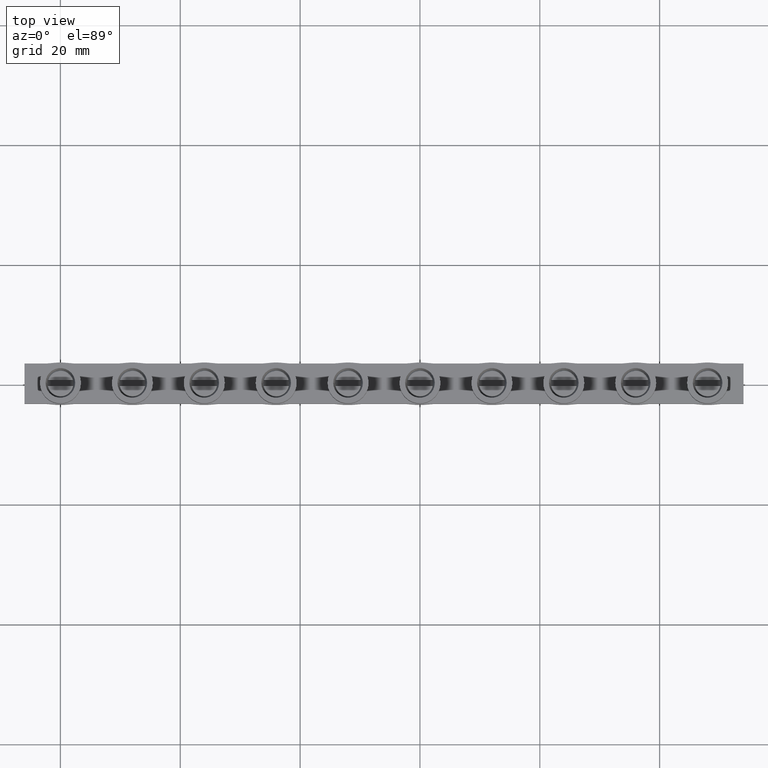
[diagram: clean part render]
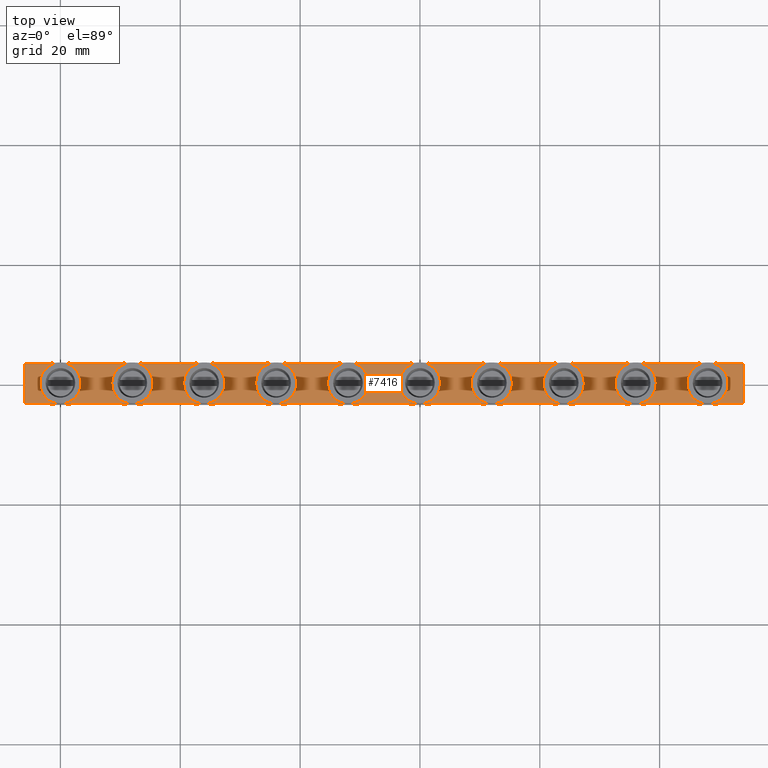
[diagram: same view with one face highlighted and labeled with its STEP entity id]
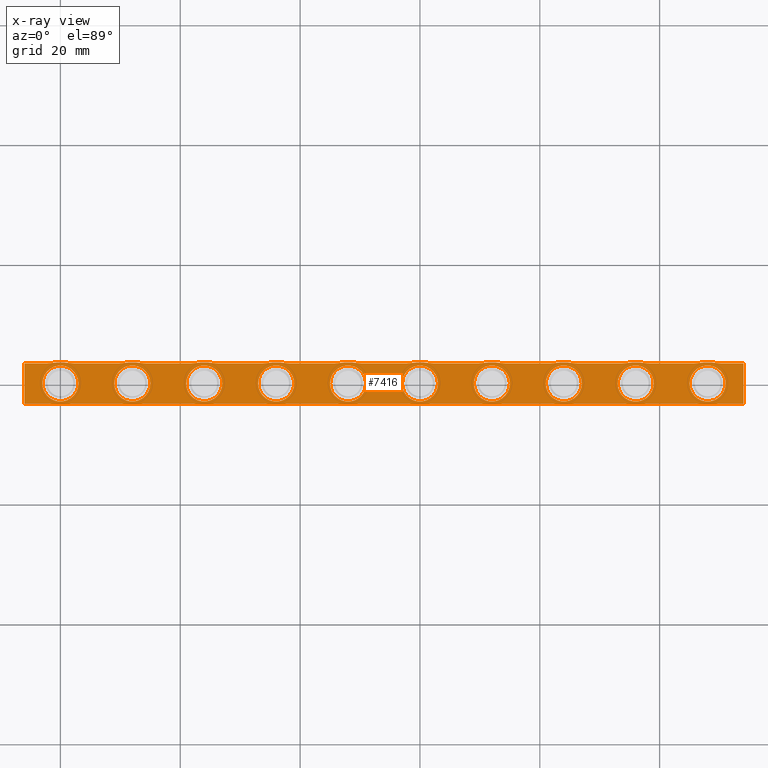
[diagram: x-ray of the same camera — body ghosted, the highlighted face saturated]
A machine part, top view. The second image highlights one B-rep face of the part: STEP entity #7416.
The next image is the same camera in x-ray: the body ghosted, the highlighted face saturated — about 0% of this face is hidden behind the body in this view.
In plain terms, the highlighted planar face has unit normal (0, 0, -1).
Its self-contained STEP definition (entity closure, byte-faithful):
#817 = DIRECTION ( 'NONE',  ( 0.0000000000000000000, 0.0000000000000000000, 1.000000000000000000 ) ) ;
#818 = DIRECTION ( 'NONE',  ( -1.000000000000000000, 0.0000000000000000000, 0.0000000000000000000 ) ) ;
#826 = CARTESIAN_POINT ( 'NONE',  ( 24.00000000000000000, 2.853742281606033700E-015, -0.9000000000000014700 ) ) ;
#1513 = CARTESIAN_POINT ( 'NONE',  ( 87.00000000000001400, 1.016003022525466700E-014, -0.9000000000000014700 ) ) ;
#1515 = CARTESIAN_POINT ( 'NONE',  ( 99.00000000000000000, 1.154780900603555300E-014, -0.9000000000000014700 ) ) ;
#1522 = CARTESIAN_POINT ( 'NONE',  ( 93.00000000000000000, 1.118041496629134800E-014, -0.9000000000000014700 ) ) ;
#1530 = CARTESIAN_POINT ( 'NONE',  ( 105.0000000000000000, 1.256819374707223200E-014, -0.9000000000000014700 ) ) ;
#1537 = CARTESIAN_POINT ( 'NONE',  ( 81.00000000000000000, 9.792636185510462000E-015, -0.9000000000000014700 ) ) ;
#1541 = CARTESIAN_POINT ( 'NONE',  ( 111.0000000000000000, 1.293558778681643700E-014, -0.9000000000000014700 ) ) ;
#1542 = CARTESIAN_POINT ( 'NONE',  ( 57.74999999999838000, -3.349999999999909900, -0.9000000000000014700 ) ) ;
#1556 = CARTESIAN_POINT ( 'NONE',  ( -2.999999999999999100, 0.0000000000000000000, -0.9000000000000014700 ) ) ;
#1567 = CARTESIAN_POINT ( 'NONE',  ( 45.75000000000147100, 3.350000000000075600, -0.9000000000000014700 ) ) ;
#1571 = CARTESIAN_POINT ( 'NONE',  ( 2.999999999999999100, 3.673940397442058900E-016, -0.9000000000000014700 ) ) ;
#1594 = CARTESIAN_POINT ( 'NONE',  ( 86.25000000000154900, -3.349999999999919700, -0.9000000000000014700 ) ) ;
#1596 = CARTESIAN_POINT ( 'NONE',  ( 9.750000000001465500, 3.350000000000071100, -0.9000000000000014700 ) ) ;
#1597 = CARTESIAN_POINT ( 'NONE',  ( -2.249999999998534500, 3.350000000000069800, -0.9000000000000014700 ) ) ;
#1598 = CARTESIAN_POINT ( 'NONE',  ( 93.75000000000147800, 3.350000000000080900, -0.9000000000000014700 ) ) ;
#1600 = CARTESIAN_POINT ( 'NONE',  ( 81.74999999999838000, -3.349999999999907300, -0.9000000000000014700 ) ) ;
#1604 = CARTESIAN_POINT ( 'NONE',  ( 9.749999999998376400, -3.349999999999915700, -0.9000000000000014700 ) ) ;
#1608 = CARTESIAN_POINT ( 'NONE',  ( 14.24999999999843900, 3.350000000000086700, -0.9000000000000014700 ) ) ;
#1609 = CARTESIAN_POINT ( 'NONE',  ( 45.74999999999838000, -3.349999999999911300, -0.9000000000000014700 ) ) ;
#1612 = CARTESIAN_POINT ( 'NONE',  ( 21.74999999999837600, -3.349999999999914400, -0.9000000000000014700 ) ) ;
#1618 = CARTESIAN_POINT ( 'NONE',  ( 113.9999999999992200, 3.350000000000098700, -0.9000000000000014700 ) ) ;
#1620 = CARTESIAN_POINT ( 'NONE',  ( 74.24999999999843700, 3.350000000000093800, -0.9000000000000014700 ) ) ;
#1621 = CARTESIAN_POINT ( 'NONE',  ( -5.999999999999998200, 3.350000000000084500, -0.9000000000000014700 ) ) ;
#1622 = CARTESIAN_POINT ( 'NONE',  ( 62.25000000000154200, -3.349999999999922400, -0.9000000000000014700 ) ) ;
#1623 = CARTESIAN_POINT ( 'NONE',  ( 105.7500000000014600, 3.350000000000082700, -0.9000000000000014700 ) ) ;
#1624 = CARTESIAN_POINT ( 'NONE',  ( 98.25000000000154900, -3.349999999999918400, -0.9000000000000014700 ) ) ;
#1627 = CARTESIAN_POINT ( 'NONE',  ( 9.000000000000001800, 1.465963500825148300E-015, -0.9000000000000014700 ) ) ;
#1629 = CARTESIAN_POINT ( 'NONE',  ( 2.250000000001540500, -3.349999999999929500, -0.9000000000000014700 ) ) ;
#1632 = CARTESIAN_POINT ( 'NONE',  ( 38.25000000000154200, -3.349999999999925500, -0.9000000000000014700 ) ) ;
#1633 = CARTESIAN_POINT ( 'NONE',  ( 26.25000000000154200, -3.349999999999926800, -0.9000000000000014700 ) ) ;
#1635 = CARTESIAN_POINT ( 'NONE',  ( 50.24999999999844400, 3.350000000000091100, -0.9000000000000014700 ) ) ;
#1636 = CARTESIAN_POINT ( 'NONE',  ( 81.75000000000147800, 3.350000000000079600, -0.9000000000000014700 ) ) ;
#1641 = CARTESIAN_POINT ( 'NONE',  ( 69.74999999999836600, -3.349999999999908600, -0.9000000000000014700 ) ) ;
#1642 = CARTESIAN_POINT ( 'NONE',  ( 15.00000000000000000, 1.833357540569354400E-015, -0.9000000000000014700 ) ) ;
#1645 = CARTESIAN_POINT ( 'NONE',  ( 33.74999999999838000, -3.349999999999913000, -0.9000000000000014700 ) ) ;
#1647 = CARTESIAN_POINT ( 'NONE',  ( 38.24999999999843700, 3.350000000000089400, -0.9000000000000014700 ) ) ;
#1649 = CARTESIAN_POINT ( 'NONE',  ( 14.25000000000154000, -3.349999999999928100, -0.9000000000000014700 ) ) ;
#1650 = CARTESIAN_POINT ( 'NONE',  ( 69.75000000000146400, 3.350000000000078200, -0.9000000000000014700 ) ) ;
#1651 = CARTESIAN_POINT ( 'NONE',  ( -2.250000000001624000, -3.349999999999917000, -0.9000000000000014700 ) ) ;
#1655 = CARTESIAN_POINT ( 'NONE',  ( 2.249999999998439500, 3.350000000000085400, -0.9000000000000014700 ) ) ;
#1656 = CARTESIAN_POINT ( 'NONE',  ( 33.75000000000146400, 3.350000000000073800, -0.9000000000000014700 ) ) ;
#1665 = CARTESIAN_POINT ( 'NONE',  ( 62.24999999999843700, 3.350000000000092500, -0.9000000000000014700 ) ) ;
#1668 = CARTESIAN_POINT ( 'NONE',  ( -5.999999999999994700, -3.349999999999916600, -0.9000000000000014700 ) ) ;
#1670 = CARTESIAN_POINT ( 'NONE',  ( 110.2499999999984500, 3.350000000000098200, -0.9000000000000014700 ) ) ;
#1673 = CARTESIAN_POINT ( 'NONE',  ( 110.2500000000015300, -3.349999999999917000, -0.9000000000000014700 ) ) ;
#1680 = CARTESIAN_POINT ( 'NONE',  ( 98.24999999999845100, 3.350000000000096500, -0.9000000000000014700 ) ) ;
#1681 = CARTESIAN_POINT ( 'NONE',  ( 105.7499999999983800, -3.349999999999904200, -0.9000000000000014700 ) ) ;
#1695 = CARTESIAN_POINT ( 'NONE',  ( 93.74999999999838000, -3.349999999999905900, -0.9000000000000014700 ) ) ;
#1700 = CARTESIAN_POINT ( 'NONE',  ( 26.24999999999844000, 3.350000000000088000, -0.9000000000000014700 ) ) ;
#1702 = CARTESIAN_POINT ( 'NONE',  ( 74.25000000000153500, -3.349999999999921000, -0.9000000000000014700 ) ) ;
#1703 = CARTESIAN_POINT ( 'NONE',  ( 57.75000000000146400, 3.350000000000076900, -0.9000000000000014700 ) ) ;
#1708 = CARTESIAN_POINT ( 'NONE',  ( 113.9999999999992200, -3.349999999999902400, -0.9000000000000014700 ) ) ;
#1711 = CARTESIAN_POINT ( 'NONE',  ( 21.75000000000146700, 3.350000000000072500, -0.9000000000000014700 ) ) ;
#1715 = CARTESIAN_POINT ( 'NONE',  ( 86.24999999999845100, 3.350000000000095100, -0.9000000000000014700 ) ) ;
#1718 = CARTESIAN_POINT ( 'NONE',  ( 50.25000000000154200, -3.349999999999923700, -0.9000000000000014700 ) ) ;
#1783 = CARTESIAN_POINT ( 'NONE',  ( 63.00000000000000000, 7.384472663692894700E-015, -0.9000000000000014700 ) ) ;
#1785 = CARTESIAN_POINT ( 'NONE',  ( 56.99999999999999300, 7.017078623948689300E-015, -0.9000000000000014700 ) ) ;
#1804 = CARTESIAN_POINT ( 'NONE',  ( 45.00000000000000000, 5.629299843167805300E-015, -0.9000000000000014700 ) ) ;
#1840 = CARTESIAN_POINT ( 'NONE',  ( 51.00000000000000700, 5.996693882912009900E-015, -0.9000000000000014700 ) ) ;
#1876 = CARTESIAN_POINT ( 'NONE',  ( 33.00000000000000000, 4.241521062386918900E-015, -0.9000000000000014700 ) ) ;
#1884 = CARTESIAN_POINT ( 'NONE',  ( 27.00000000000000000, 3.221136321350239600E-015, -0.9000000000000014700 ) ) ;
#1894 = CARTESIAN_POINT ( 'NONE',  ( 39.00000000000000700, 4.608915102131124400E-015, -0.9000000000000014700 ) ) ;
#1898 = CARTESIAN_POINT ( 'NONE',  ( 21.00000000000000000, 2.853742281606033700E-015, -0.9000000000000014700 ) ) ;
#2437 = CARTESIAN_POINT ( 'NONE',  ( 68.99999999999998600, 8.404857404729574900E-015, -0.9000000000000014700 ) ) ;
#2465 = CARTESIAN_POINT ( 'NONE',  ( 75.00000000000000000, 8.772251444473780300E-015, -0.9000000000000014700 ) ) ;
#2492 = EDGE_CURVE ( 'NONE', #5412, #5449, #2639, .T. ) ;
#2631 = AXIS2_PLACEMENT_3D ( 'NONE', #826, #817, #818 ) ;
#2639 = CIRCLE ( 'NONE', #2631, 2.999999999999999100 ) ;
#2726 = AXIS2_PLACEMENT_3D ( 'NONE', #16249, #16261, #16259 ) ;
#2779 = CIRCLE ( 'NONE', #2726, 3.000000000000002700 ) ;
#3196 = CIRCLE ( 'NONE', #3208, 3.000000000000002700 ) ;
#3208 = AXIS2_PLACEMENT_3D ( 'NONE', #16029, #16014, #16018 ) ;
#3448 = CARTESIAN_POINT ( 'NONE',  ( 60.00000000000000000, 7.017078623948689300E-015, -0.9000000000000014700 ) ) ;
#3461 = DIRECTION ( 'NONE',  ( 0.0000000000000000000, 0.0000000000000000000, 1.000000000000000000 ) ) ;
#3462 = DIRECTION ( 'NONE',  ( -1.000000000000000000, 0.0000000000000000000, 0.0000000000000000000 ) ) ;
#3616 = VERTEX_POINT ( 'NONE', #1515 ) ;
#3639 = VERTEX_POINT ( 'NONE', #1513 ) ;
#3649 = VERTEX_POINT ( 'NONE', #1522 ) ;
#3669 = VERTEX_POINT ( 'NONE', #1530 ) ;
#3674 = VERTEX_POINT ( 'NONE', #1537 ) ;
#3692 = VERTEX_POINT ( 'NONE', #1541 ) ;
#3699 = VERTEX_POINT ( 'NONE', #1571 ) ;
#3711 = VERTEX_POINT ( 'NONE', #1556 ) ;
#3714 = VERTEX_POINT ( 'NONE', #1596 ) ;
#3715 = VERTEX_POINT ( 'NONE', #1567 ) ;
#3719 = VERTEX_POINT ( 'NONE', #1542 ) ;
#3734 = VERTEX_POINT ( 'NONE', #1594 ) ;
#3736 = VERTEX_POINT ( 'NONE', #1655 ) ;
#3737 = VERTEX_POINT ( 'NONE', #1604 ) ;
#3738 = VERTEX_POINT ( 'NONE', #1651 ) ;
#3739 = VERTEX_POINT ( 'NONE', #1649 ) ;
#3744 = VERTEX_POINT ( 'NONE', #1632 ) ;
#3745 = VERTEX_POINT ( 'NONE', #1627 ) ;
#3747 = VERTEX_POINT ( 'NONE', #1645 ) ;
#3748 = VERTEX_POINT ( 'NONE', #1642 ) ;
#3758 = VERTEX_POINT ( 'NONE', #1609 ) ;
#3763 = VERTEX_POINT ( 'NONE', #1598 ) ;
#3764 = VERTEX_POINT ( 'NONE', #1612 ) ;
#3765 = VERTEX_POINT ( 'NONE', #1618 ) ;
#3766 = VERTEX_POINT ( 'NONE', #1629 ) ;
#3778 = VERTEX_POINT ( 'NONE', #1633 ) ;
#3779 = VERTEX_POINT ( 'NONE', #1600 ) ;
#3781 = VERTEX_POINT ( 'NONE', #1620 ) ;
#3782 = VERTEX_POINT ( 'NONE', #1635 ) ;
#3783 = VERTEX_POINT ( 'NONE', #1608 ) ;
#3784 = VERTEX_POINT ( 'NONE', #1641 ) ;
#3785 = VERTEX_POINT ( 'NONE', #1621 ) ;
#3786 = VERTEX_POINT ( 'NONE', #1622 ) ;
#3787 = VERTEX_POINT ( 'NONE', #1623 ) ;
#3788 = VERTEX_POINT ( 'NONE', #1624 ) ;
#3789 = VERTEX_POINT ( 'NONE', #1636 ) ;
#3792 = VERTEX_POINT ( 'NONE', #1656 ) ;
#3793 = VERTEX_POINT ( 'NONE', #1647 ) ;
#3795 = VERTEX_POINT ( 'NONE', #1650 ) ;
#3796 = VERTEX_POINT ( 'NONE', #1597 ) ;
#3797 = VERTEX_POINT ( 'NONE', #1718 ) ;
#3798 = VERTEX_POINT ( 'NONE', #1700 ) ;
#3799 = VERTEX_POINT ( 'NONE', #1708 ) ;
#3800 = VERTEX_POINT ( 'NONE', #1670 ) ;
#3801 = VERTEX_POINT ( 'NONE', #1695 ) ;
#3802 = VERTEX_POINT ( 'NONE', #1680 ) ;
#3804 = VERTEX_POINT ( 'NONE', #1681 ) ;
#3805 = VERTEX_POINT ( 'NONE', #1668 ) ;
#3806 = VERTEX_POINT ( 'NONE', #1711 ) ;
#3810 = VERTEX_POINT ( 'NONE', #1715 ) ;
#3811 = VERTEX_POINT ( 'NONE', #1673 ) ;
#3813 = VERTEX_POINT ( 'NONE', #1702 ) ;
#3814 = VERTEX_POINT ( 'NONE', #1665 ) ;
#3815 = VERTEX_POINT ( 'NONE', #1703 ) ;
#4007 = CARTESIAN_POINT ( 'NONE',  ( 84.00000000000000000, 9.792636185510462000E-015, -0.9000000000000014700 ) ) ;
#4012 = DIRECTION ( 'NONE',  ( 0.0000000000000000000, 0.0000000000000000000, 1.000000000000000000 ) ) ;
#4015 = DIRECTION ( 'NONE',  ( -1.000000000000000000, 0.0000000000000000000, 0.0000000000000000000 ) ) ;
#4098 = CARTESIAN_POINT ( 'NONE',  ( 72.00000000000000000, 8.404857404729574900E-015, -0.9000000000000014700 ) ) ;
#4102 = DIRECTION ( 'NONE',  ( 0.0000000000000000000, 0.0000000000000000000, 1.000000000000000000 ) ) ;
#4108 = DIRECTION ( 'NONE',  ( -1.000000000000000000, 0.0000000000000000000, 0.0000000000000000000 ) ) ;
#4567 = EDGE_LOOP ( 'NONE', ( #7287, #7341 ) ) ;
#4571 = EDGE_LOOP ( 'NONE', ( #7304, #7348 ) ) ;
#4579 = EDGE_LOOP ( 'NONE', ( #7466, #7460 ) ) ;
#4580 = EDGE_LOOP ( 'NONE', ( #7353, #7295 ) ) ;
#4590 = EDGE_LOOP ( 'NONE', ( #7401, #7360 ) ) ;
#4596 = EDGE_LOOP ( 'NONE', ( #7362, #7408 ) ) ;
#4599 = EDGE_LOOP ( 'NONE', ( #7410, #7424 ) ) ;
#4612 = EDGE_LOOP ( 'NONE', ( #7385, #7378 ) ) ;
#4618 = EDGE_LOOP ( 'NONE', ( #7330, #7351 ) ) ;
#4625 = EDGE_LOOP ( 'NONE', ( #7339, #7292 ) ) ;
#4627 = EDGE_LOOP ( 'NONE', ( #7375, #7367, #7322, #7309, #7326, #7373, #7370, #7365, #7317, #7281, #7280, #7471, #7438, #7363, #7356, #7436, #7387, #7299, #7337, #7285, #7288, #7342, #7321, #7269, #7283, #7290, #7332, #7319, #7271, #7311, #7335, #7313, #7369, #7302, #7315, #7294, #7275, #7349, #7334, #7274, #7324, #7297, #7308, #7306 ) ) ;
#5260 = VERTEX_POINT ( 'NONE', #1783 ) ;
#5262 = VERTEX_POINT ( 'NONE', #1785 ) ;
#5279 = VERTEX_POINT ( 'NONE', #2437 ) ;
#5318 = VERTEX_POINT ( 'NONE', #2465 ) ;
#5373 = VERTEX_POINT ( 'NONE', #1840 ) ;
#5378 = VERTEX_POINT ( 'NONE', #1804 ) ;
#5402 = VERTEX_POINT ( 'NONE', #1894 ) ;
#5403 = VERTEX_POINT ( 'NONE', #1876 ) ;
#5412 = VERTEX_POINT ( 'NONE', #1884 ) ;
#5449 = VERTEX_POINT ( 'NONE', #1898 ) ;
#5948 = EDGE_CURVE ( 'NONE', #5373, #5378, #3196, .T. ) ;
#6061 = EDGE_CURVE ( 'NONE', #3616, #3649, #2779, .T. ) ;
#6138 = EDGE_CURVE ( 'NONE', #3692, #3669, #9224, .T. ) ;
#6152 = EDGE_CURVE ( 'NONE', #3699, #3711, #9208, .T. ) ;
#6255 = EDGE_CURVE ( 'NONE', #3639, #3674, #9356, .T. ) ;
#6314 = EDGE_CURVE ( 'NONE', #5318, #5279, #9387, .T. ) ;
#6508 = EDGE_CURVE ( 'NONE', #5260, #5262, #9565, .T. ) ;
#7269 = ORIENTED_EDGE ( 'NONE', *, *, #8979, .F. ) ;
#7271 = ORIENTED_EDGE ( 'NONE', *, *, #8949, .T. ) ;
#7274 = ORIENTED_EDGE ( 'NONE', *, *, #9027, .F. ) ;
#7275 = ORIENTED_EDGE ( 'NONE', *, *, #9026, .T. ) ;
#7280 = ORIENTED_EDGE ( 'NONE', *, *, #8974, .T. ) ;
#7281 = ORIENTED_EDGE ( 'NONE', *, *, #8970, .F. ) ;
#7283 = ORIENTED_EDGE ( 'NONE', *, *, #9005, .T. ) ;
#7285 = ORIENTED_EDGE ( 'NONE', *, *, #8995, .F. ) ;
#7287 = ORIENTED_EDGE ( 'NONE', *, *, #9047, .F. ) ;
#7288 = ORIENTED_EDGE ( 'NONE', *, *, #8964, .T. ) ;
#7290 = ORIENTED_EDGE ( 'NONE', *, *, #8989, .T. ) ;
#7292 = ORIENTED_EDGE ( 'NONE', *, *, #15704, .F. ) ;
#7294 = ORIENTED_EDGE ( 'NONE', *, *, #9034, .F. ) ;
#7295 = ORIENTED_EDGE ( 'NONE', *, *, #5948, .F. ) ;
#7297 = ORIENTED_EDGE ( 'NONE', *, *, #9057, .F. ) ;
#7299 = ORIENTED_EDGE ( 'NONE', *, *, #8992, .F. ) ;
#7302 = ORIENTED_EDGE ( 'NONE', *, *, #8968, .F. ) ;
#7304 = ORIENTED_EDGE ( 'NONE', *, *, #8962, .F. ) ;
#7306 = ORIENTED_EDGE ( 'NONE', *, *, #9021, .F. ) ;
#7308 = ORIENTED_EDGE ( 'NONE', *, *, #9029, .T. ) ;
#7309 = ORIENTED_EDGE ( 'NONE', *, *, #8938, .T. ) ;
#7311 = ORIENTED_EDGE ( 'NONE', *, *, #9004, .F. ) ;
#7313 = ORIENTED_EDGE ( 'NONE', *, *, #8996, .F. ) ;
#7315 = ORIENTED_EDGE ( 'NONE', *, *, #9035, .T. ) ;
#7317 = ORIENTED_EDGE ( 'NONE', *, *, #9001, .T. ) ;
#7319 = ORIENTED_EDGE ( 'NONE', *, *, #8981, .F. ) ;
#7321 = ORIENTED_EDGE ( 'NONE', *, *, #8988, .T. ) ;
#7322 = ORIENTED_EDGE ( 'NONE', *, *, #8963, .T. ) ;
#7324 = ORIENTED_EDGE ( 'NONE', *, *, #9038, .T. ) ;
#7326 = ORIENTED_EDGE ( 'NONE', *, *, #8952, .T. ) ;
#7330 = ORIENTED_EDGE ( 'NONE', *, *, #9017, .F. ) ;
#7332 = ORIENTED_EDGE ( 'NONE', *, *, #9006, .T. ) ;
#7334 = ORIENTED_EDGE ( 'NONE', *, *, #8976, .T. ) ;
#7335 = ORIENTED_EDGE ( 'NONE', *, *, #8993, .T. ) ;
#7337 = ORIENTED_EDGE ( 'NONE', *, *, #8959, .T. ) ;
#7339 = ORIENTED_EDGE ( 'NONE', *, *, #9041, .F. ) ;
#7341 = ORIENTED_EDGE ( 'NONE', *, *, #6314, .F. ) ;
#7342 = ORIENTED_EDGE ( 'NONE', *, *, #8954, .F. ) ;
#7348 = ORIENTED_EDGE ( 'NONE', *, *, #8897, .F. ) ;
#7349 = ORIENTED_EDGE ( 'NONE', *, *, #9050, .F. ) ;
#7351 = ORIENTED_EDGE ( 'NONE', *, *, #6508, .F. ) ;
#7353 = ORIENTED_EDGE ( 'NONE', *, *, #9060, .F. ) ;
#7356 = ORIENTED_EDGE ( 'NONE', *, *, #8971, .T. ) ;
#7360 = ORIENTED_EDGE ( 'NONE', *, *, #2492, .F. ) ;
#7362 = ORIENTED_EDGE ( 'NONE', *, *, #9025, .F. ) ;
#7363 = ORIENTED_EDGE ( 'NONE', *, *, #8957, .F. ) ;
#7365 = ORIENTED_EDGE ( 'NONE', *, *, #8973, .F. ) ;
#7367 = ORIENTED_EDGE ( 'NONE', *, *, #8991, .F. ) ;
#7369 = ORIENTED_EDGE ( 'NONE', *, *, #8990, .T. ) ;
#7370 = ORIENTED_EDGE ( 'NONE', *, *, #9002, .T. ) ;
#7373 = ORIENTED_EDGE ( 'NONE', *, *, #8977, .F. ) ;
#7375 = ORIENTED_EDGE ( 'NONE', *, *, #8982, .T. ) ;
#7378 = ORIENTED_EDGE ( 'NONE', *, *, #6138, .F. ) ;
#7385 = ORIENTED_EDGE ( 'NONE', *, *, #9014, .F. ) ;
#7387 = ORIENTED_EDGE ( 'NONE', *, *, #8931, .T. ) ;
#7401 = ORIENTED_EDGE ( 'NONE', *, *, #9045, .F. ) ;
#7408 = ORIENTED_EDGE ( 'NONE', *, *, #6255, .F. ) ;
#7410 = ORIENTED_EDGE ( 'NONE', *, *, #9024, .F. ) ;
#7416 = ADVANCED_FACE ( 'NONE', ( #11169, #11177, #11178, #11165, #11166, #11176, #11194, #11186, #11190, #11156, #11195 ), #11218, .F. ) ;
#7424 = ORIENTED_EDGE ( 'NONE', *, *, #6152, .F. ) ;
#7436 = ORIENTED_EDGE ( 'NONE', *, *, #9007, .F. ) ;
#7438 = ORIENTED_EDGE ( 'NONE', *, *, #8984, .T. ) ;
#7460 = ORIENTED_EDGE ( 'NONE', *, *, #6061, .F. ) ;
#7466 = ORIENTED_EDGE ( 'NONE', *, *, #9056, .F. ) ;
#7471 = ORIENTED_EDGE ( 'NONE', *, *, #8928, .F. ) ;
#8709 = AXIS2_PLACEMENT_3D ( 'NONE', #14348, #14330, #14350 ) ;
#8728 = CIRCLE ( 'NONE', #8709, 3.000000000000002700 ) ;
#8778 = CIRCLE ( 'NONE', #8786, 3.000000000000002700 ) ;
#8786 = AXIS2_PLACEMENT_3D ( 'NONE', #12195, #12198, #12220 ) ;
#8897 = EDGE_CURVE ( 'NONE', #3748, #3745, #16682, .T. ) ;
#8928 = EDGE_CURVE ( 'NONE', #3744, #3747, #16756, .T. ) ;
#8931 = EDGE_CURVE ( 'NONE', #3786, #3784, #12727, .T. ) ;
#8938 = EDGE_CURVE ( 'NONE', #3785, #3805, #12794, .T. ) ;
#8949 = EDGE_CURVE ( 'NONE', #3787, #3802, #12763, .T. ) ;
#8952 = EDGE_CURVE ( 'NONE', #3805, #3738, #12811, .T. ) ;
#8954 = EDGE_CURVE ( 'NONE', #3788, #3801, #16802, .T. ) ;
#8957 = EDGE_CURVE ( 'NONE', #3797, #3758, #16710, .T. ) ;
#8959 = EDGE_CURVE ( 'NONE', #3813, #3779, #12813, .T. ) ;
#8962 = EDGE_CURVE ( 'NONE', #3745, #3748, #16879, .T. ) ;
#8963 = EDGE_CURVE ( 'NONE', #3796, #3785, #12929, .T. ) ;
#8964 = EDGE_CURVE ( 'NONE', #3734, #3801, #12992, .T. ) ;
#8968 = EDGE_CURVE ( 'NONE', #3795, #3781, #16857, .T. ) ;
#8970 = EDGE_CURVE ( 'NONE', #3778, #3764, #16880, .T. ) ;
#8971 = EDGE_CURVE ( 'NONE', #3797, #3719, #13004, .T. ) ;
#8973 = EDGE_CURVE ( 'NONE', #3739, #3737, #16823, .T. ) ;
#8974 = EDGE_CURVE ( 'NONE', #3778, #3747, #12982, .T. ) ;
#8976 = EDGE_CURVE ( 'NONE', #3715, #3793, #12991, .T. ) ;
#8977 = EDGE_CURVE ( 'NONE', #3766, #3738, #16859, .T. ) ;
#8979 = EDGE_CURVE ( 'NONE', #3811, #3804, #16865, .T. ) ;
#8981 = EDGE_CURVE ( 'NONE', #3787, #3800, #16874, .T. ) ;
#8982 = EDGE_CURVE ( 'NONE', #3714, #3736, #11960, .T. ) ;
#8984 = EDGE_CURVE ( 'NONE', #3744, #3758, #11967, .T. ) ;
#8988 = EDGE_CURVE ( 'NONE', #3788, #3804, #11958, .T. ) ;
#8989 = EDGE_CURVE ( 'NONE', #3799, #3765, #11979, .T. ) ;
#8990 = EDGE_CURVE ( 'NONE', #3789, #3781, #11986, .T. ) ;
#8991 = EDGE_CURVE ( 'NONE', #3796, #3736, #16843, .T. ) ;
#8992 = EDGE_CURVE ( 'NONE', #3813, #3784, #16809, .T. ) ;
#8993 = EDGE_CURVE ( 'NONE', #3763, #3810, #12008, .T. ) ;
#8995 = EDGE_CURVE ( 'NONE', #3734, #3779, #16813, .T. ) ;
#8996 = EDGE_CURVE ( 'NONE', #3789, #3810, #16847, .T. ) ;
#9001 = EDGE_CURVE ( 'NONE', #3739, #3764, #11992, .T. ) ;
#9002 = EDGE_CURVE ( 'NONE', #3766, #3737, #11987, .T. ) ;
#9004 = EDGE_CURVE ( 'NONE', #3763, #3802, #16856, .T. ) ;
#9005 = EDGE_CURVE ( 'NONE', #3811, #3799, #12001, .T. ) ;
#9006 = EDGE_CURVE ( 'NONE', #3765, #3800, #12031, .T. ) ;
#9007 = EDGE_CURVE ( 'NONE', #3786, #3719, #17007, .T. ) ;
#9014 = EDGE_CURVE ( 'NONE', #3669, #3692, #16972, .T. ) ;
#9017 = EDGE_CURVE ( 'NONE', #5262, #5260, #16925, .T. ) ;
#9021 = EDGE_CURVE ( 'NONE', #3714, #3783, #16989, .T. ) ;
#9024 = EDGE_CURVE ( 'NONE', #3711, #3699, #16954, .T. ) ;
#9025 = EDGE_CURVE ( 'NONE', #3674, #3639, #16956, .T. ) ;
#9026 = EDGE_CURVE ( 'NONE', #3815, #3782, #12079, .T. ) ;
#9027 = EDGE_CURVE ( 'NONE', #3792, #3793, #16916, .T. ) ;
#9029 = EDGE_CURVE ( 'NONE', #3806, #3783, #12082, .T. ) ;
#9034 = EDGE_CURVE ( 'NONE', #3815, #3814, #16936, .T. ) ;
#9035 = EDGE_CURVE ( 'NONE', #3795, #3814, #12132, .T. ) ;
#9038 = EDGE_CURVE ( 'NONE', #3792, #3798, #12125, .T. ) ;
#9041 = EDGE_CURVE ( 'NONE', #5403, #5402, #16950, .T. ) ;
#9045 = EDGE_CURVE ( 'NONE', #5449, #5412, #16940, .T. ) ;
#9047 = EDGE_CURVE ( 'NONE', #5279, #5318, #16358, .T. ) ;
#9050 = EDGE_CURVE ( 'NONE', #3715, #3782, #16572, .T. ) ;
#9056 = EDGE_CURVE ( 'NONE', #3649, #3616, #16681, .T. ) ;
#9057 = EDGE_CURVE ( 'NONE', #3806, #3798, #16356, .T. ) ;
#9060 = EDGE_CURVE ( 'NONE', #5378, #5373, #8778, .T. ) ;
#9208 = CIRCLE ( 'NONE', #9209, 2.999999999999999100 ) ;
#9209 = AXIS2_PLACEMENT_3D ( 'NONE', #15949, #15940, #15953 ) ;
#9222 = AXIS2_PLACEMENT_3D ( 'NONE', #15919, #15910, #15916 ) ;
#9224 = CIRCLE ( 'NONE', #9222, 3.000000000000002700 ) ;
#9321 = AXIS2_PLACEMENT_3D ( 'NONE', #4007, #4012, #4015 ) ;
#9356 = CIRCLE ( 'NONE', #9321, 3.000000000000002700 ) ;
#9387 = CIRCLE ( 'NONE', #9415, 3.000000000000002700 ) ;
#9415 = AXIS2_PLACEMENT_3D ( 'NONE', #4098, #4102, #4108 ) ;
#9546 = AXIS2_PLACEMENT_3D ( 'NONE', #3448, #3461, #3462 ) ;
#9565 = CIRCLE ( 'NONE', #9546, 3.000000000000002700 ) ;
#11156 = FACE_BOUND ( 'NONE', #4612, .T. ) ;
#11165 = FACE_BOUND ( 'NONE', #4625, .T. ) ;
#11166 = FACE_BOUND ( 'NONE', #4580, .T. ) ;
#11169 = FACE_BOUND ( 'NONE', #4571, .T. ) ;
#11176 = FACE_BOUND ( 'NONE', #4618, .T. ) ;
#11177 = FACE_OUTER_BOUND ( 'NONE', #4627, .T. ) ;
#11178 = FACE_BOUND ( 'NONE', #4590, .T. ) ;
#11186 = FACE_BOUND ( 'NONE', #4596, .T. ) ;
#11190 = FACE_BOUND ( 'NONE', #4579, .T. ) ;
#11194 = FACE_BOUND ( 'NONE', #4567, .T. ) ;
#11195 = FACE_BOUND ( 'NONE', #4599, .T. ) ;
#11210 = DIRECTION ( 'NONE',  ( -1.000000000000000000, 0.0000000000000000000, -0.0000000000000000000 ) ) ;
#11218 = PLANE ( 'NONE',  #16558 ) ;
#11242 = CARTESIAN_POINT ( 'NONE',  ( -77.85000000000005100, -3.349999999999924100, -0.9000000000000014700 ) ) ;
#11243 = DIRECTION ( 'NONE',  ( 0.0000000000000000000, 0.0000000000000000000, -1.000000000000000000 ) ) ;
#11936 = CARTESIAN_POINT ( 'NONE',  ( 112.1500000000000200, -3.349999999999902800, -0.9000000000000014700 ) ) ;
#11945 = CARTESIAN_POINT ( 'NONE',  ( 52.15000000000000600, -3.349999999999909900, -0.9000000000000014700 ) ) ;
#11946 = DIRECTION ( 'NONE',  ( -0.0000000000000000000, -0.0000000000000000000, -1.000000000000000000 ) ) ;
#11947 = CARTESIAN_POINT ( 'NONE',  ( 3.469446951953614200E-015, 13.45000000000008500, -0.9000000000000014700 ) ) ;
#11953 = DIRECTION ( 'NONE',  ( 1.000000000000000000, 0.0000000000000000000, 0.0000000000000000000 ) ) ;
#11956 = CARTESIAN_POINT ( 'NONE',  ( 108.0000000000000100, 13.45000000000009700, -0.9000000000000014700 ) ) ;
#11958 = LINE ( 'NONE', #11936, #16835 ) ;
#11959 = DIRECTION ( 'NONE',  ( 1.000000000000000000, 1.245679091791856200E-016, -0.0000000000000000000 ) ) ;
#11960 = LINE ( 'NONE', #11974, #16878 ) ;
#11963 = DIRECTION ( 'NONE',  ( -1.000000000000000000, -1.245679091791856200E-016, -0.0000000000000000000 ) ) ;
#11967 = LINE ( 'NONE', #11945, #16889 ) ;
#11969 = DIRECTION ( 'NONE',  ( -0.0000000000000000000, -0.0000000000000000000, -1.000000000000000000 ) ) ;
#11970 = DIRECTION ( 'NONE',  ( -0.0000000000000000000, -0.0000000000000000000, -1.000000000000000000 ) ) ;
#11971 = DIRECTION ( 'NONE',  ( 1.000000000000000000, -4.400773419882109600E-015, 0.0000000000000000000 ) ) ;
#11973 = CARTESIAN_POINT ( 'NONE',  ( 108.0000000000000100, -13.45000000000033300, -0.9000000000000014700 ) ) ;
#11974 = CARTESIAN_POINT ( 'NONE',  ( 16.15000000000000900, 3.350000000000087100, -0.9000000000000014700 ) ) ;
#11975 = DIRECTION ( 'NONE',  ( 1.000000000000000000, 1.739840654371996700E-015, 0.0000000000000000000 ) ) ;
#11976 = DIRECTION ( 'NONE',  ( -1.000000000000000000, -1.245679091791856200E-016, -0.0000000000000000000 ) ) ;
#11978 = DIRECTION ( 'NONE',  ( 1.000000000000000000, 1.245679091791856200E-016, -0.0000000000000000000 ) ) ;
#11979 = LINE ( 'NONE', #12005, #16905 ) ;
#11981 = CARTESIAN_POINT ( 'NONE',  ( 72.00000000000001400, 13.45000000000009300, -0.9000000000000014700 ) ) ;
#11984 = DIRECTION ( 'NONE',  ( -0.0000000000000000000, -0.0000000000000000000, -1.000000000000000000 ) ) ;
#11986 = LINE ( 'NONE', #12006, #16825 ) ;
#11987 = LINE ( 'NONE', #12000, #16863 ) ;
#11988 = DIRECTION ( 'NONE',  ( 1.000000000000000000, 0.0000000000000000000, 0.0000000000000000000 ) ) ;
#11989 = DIRECTION ( 'NONE',  ( -1.000000000000000000, -1.245679091791856200E-016, -0.0000000000000000000 ) ) ;
#11992 = LINE ( 'NONE', #11993, #16861 ) ;
#11993 = CARTESIAN_POINT ( 'NONE',  ( 28.15000000000000900, -3.349999999999912600, -0.9000000000000014700 ) ) ;
#11994 = CARTESIAN_POINT ( 'NONE',  ( 100.1500000000000200, 3.350000000000096900, -0.9000000000000014700 ) ) ;
#11996 = DIRECTION ( 'NONE',  ( 1.000000000000000000, 1.245679091791856200E-016, -0.0000000000000000000 ) ) ;
#11998 = CARTESIAN_POINT ( 'NONE',  ( 84.00000000000001400, -13.45000000000033500, -0.9000000000000014700 ) ) ;
#12000 = CARTESIAN_POINT ( 'NONE',  ( 16.15000000000000900, -3.349999999999913900, -0.9000000000000014700 ) ) ;
#12001 = LINE ( 'NONE', #12022, #16819 ) ;
#12002 = DIRECTION ( 'NONE',  ( 1.000000000000000000, 7.061706185392220900E-015, 0.0000000000000000000 ) ) ;
#12004 = DIRECTION ( 'NONE',  ( 1.000000000000000000, 1.245679091791856200E-016, -0.0000000000000000000 ) ) ;
#12005 = CARTESIAN_POINT ( 'NONE',  ( 113.9999999999992300, -3.349999999999913000, -0.9000000000000014700 ) ) ;
#12006 = CARTESIAN_POINT ( 'NONE',  ( 88.15000000000000600, 3.350000000000095600, -0.9000000000000014700 ) ) ;
#12008 = LINE ( 'NONE', #11994, #16837 ) ;
#12010 = CARTESIAN_POINT ( 'NONE',  ( 84.00000000000001400, 13.45000000000009500, -0.9000000000000014700 ) ) ;
#12011 = DIRECTION ( 'NONE',  ( 1.000000000000000000, 1.739840654371996700E-015, 0.0000000000000000000 ) ) ;
#12013 = DIRECTION ( 'NONE',  ( 0.0000000000000000000, 1.000000000000000000, 0.0000000000000000000 ) ) ;
#12014 = DIRECTION ( 'NONE',  ( -1.000000000000000000, -1.245679091791856200E-016, -0.0000000000000000000 ) ) ;
#12016 = DIRECTION ( 'NONE',  ( 1.000000000000000000, 1.739840654371996700E-015, 0.0000000000000000000 ) ) ;
#12017 = DIRECTION ( 'NONE',  ( -0.0000000000000000000, -0.0000000000000000000, -1.000000000000000000 ) ) ;
#12018 = DIRECTION ( 'NONE',  ( -0.0000000000000000000, -0.0000000000000000000, -1.000000000000000000 ) ) ;
#12019 = DIRECTION ( 'NONE',  ( -0.0000000000000000000, -0.0000000000000000000, -1.000000000000000000 ) ) ;
#12020 = CARTESIAN_POINT ( 'NONE',  ( 3.469446951953614200E-015, -13.45000000000034600, -0.9000000000000014700 ) ) ;
#12022 = CARTESIAN_POINT ( 'NONE',  ( 124.1500000000000100, -3.349999999999901100, -0.9000000000000014700 ) ) ;
#12025 = DIRECTION ( 'NONE',  ( 1.000000000000000000, 1.245679091791856200E-016, -0.0000000000000000000 ) ) ;
#12027 = DIRECTION ( 'NONE',  ( 0.0000000000000000000, 0.0000000000000000000, 1.000000000000000000 ) ) ;
#12028 = DIRECTION ( 'NONE',  ( -1.000000000000000000, 0.0000000000000000000, 0.0000000000000000000 ) ) ;
#12029 = DIRECTION ( 'NONE',  ( -0.0000000000000000000, -0.0000000000000000000, -1.000000000000000000 ) ) ;
#12030 = CARTESIAN_POINT ( 'NONE',  ( 96.00000000000000000, -13.45000000000033300, -0.9000000000000014700 ) ) ;
#12031 = LINE ( 'NONE', #12059, #17016 ) ;
#12034 = DIRECTION ( 'NONE',  ( 1.000000000000000000, -3.582024876648228300E-015, 0.0000000000000000000 ) ) ;
#12035 = DIRECTION ( 'NONE',  ( -1.000000000000000000, -1.245679091791856200E-016, -0.0000000000000000000 ) ) ;
#12037 = DIRECTION ( 'NONE',  ( -0.0000000000000000000, -0.0000000000000000000, -1.000000000000000000 ) ) ;
#12038 = CARTESIAN_POINT ( 'NONE',  ( 60.00000000000000700, 13.45000000000009200, -0.9000000000000014700 ) ) ;
#12040 = CARTESIAN_POINT ( 'NONE',  ( 108.0000000000000000, 1.256819374707223200E-014, -0.9000000000000014700 ) ) ;
#12042 = DIRECTION ( 'NONE',  ( 1.000000000000000000, 1.739840654371996100E-015, 0.0000000000000000000 ) ) ;
#12059 = CARTESIAN_POINT ( 'NONE',  ( 124.1500000000000100, 3.350000000000100000, -0.9000000000000014700 ) ) ;
#12064 = DIRECTION ( 'NONE',  ( -1.000000000000000000, -1.245679091791856200E-016, -0.0000000000000000000 ) ) ;
#12065 = DIRECTION ( 'NONE',  ( -0.0000000000000000000, -0.0000000000000000000, -1.000000000000000000 ) ) ;
#12066 = DIRECTION ( 'NONE',  ( -1.000000000000000000, -1.245679091791856200E-016, -0.0000000000000000000 ) ) ;
#12068 = CARTESIAN_POINT ( 'NONE',  ( 84.00000000000000000, 9.792636185510462000E-015, -0.9000000000000014700 ) ) ;
#12069 = CARTESIAN_POINT ( 'NONE',  ( 60.00000000000000000, 7.017078623948689300E-015, -0.9000000000000014700 ) ) ;
#12071 = CARTESIAN_POINT ( 'NONE',  ( 36.00000000000000700, -13.45000000000034000, -0.9000000000000014700 ) ) ;
#12073 = DIRECTION ( 'NONE',  ( 1.000000000000000000, 7.061706185392222400E-015, 0.0000000000000000000 ) ) ;
#12077 = DIRECTION ( 'NONE',  ( 0.0000000000000000000, 0.0000000000000000000, 1.000000000000000000 ) ) ;
#12078 = DIRECTION ( 'NONE',  ( 0.0000000000000000000, 0.0000000000000000000, 1.000000000000000000 ) ) ;
#12079 = LINE ( 'NONE', #12096, #16970 ) ;
#12082 = LINE ( 'NONE', #12084, #16944 ) ;
#12083 = DIRECTION ( 'NONE',  ( 0.0000000000000000000, 0.0000000000000000000, 1.000000000000000000 ) ) ;
#12084 = CARTESIAN_POINT ( 'NONE',  ( 28.15000000000000900, 3.350000000000088500, -0.9000000000000014700 ) ) ;
#12091 = DIRECTION ( 'NONE',  ( -0.0000000000000000000, -0.0000000000000000000, -1.000000000000000000 ) ) ;
#12092 = DIRECTION ( 'NONE',  ( 1.000000000000000000, 7.061706185392220900E-015, 0.0000000000000000000 ) ) ;
#12094 = DIRECTION ( 'NONE',  ( -1.000000000000000000, 0.0000000000000000000, 0.0000000000000000000 ) ) ;
#12095 = CARTESIAN_POINT ( 'NONE',  ( 12.00000000000000400, -13.45000000000034400, -0.9000000000000014700 ) ) ;
#12096 = CARTESIAN_POINT ( 'NONE',  ( 64.15000000000000600, 3.350000000000092900, -0.9000000000000014700 ) ) ;
#12097 = DIRECTION ( 'NONE',  ( -1.000000000000000000, 0.0000000000000000000, 0.0000000000000000000 ) ) ;
#12106 = DIRECTION ( 'NONE',  ( -1.000000000000000000, 0.0000000000000000000, 0.0000000000000000000 ) ) ;
#12107 = CARTESIAN_POINT ( 'NONE',  ( 0.0000000000000000000, 0.0000000000000000000, -0.9000000000000014700 ) ) ;
#12110 = CARTESIAN_POINT ( 'NONE',  ( 36.00000000000000700, 4.241521062386918900E-015, -0.9000000000000014700 ) ) ;
#12111 = DIRECTION ( 'NONE',  ( 1.000000000000000000, 3.582024876648226700E-015, 0.0000000000000000000 ) ) ;
#12114 = CARTESIAN_POINT ( 'NONE',  ( 24.00000000000000000, 2.853742281606033700E-015, -0.9000000000000014700 ) ) ;
#12119 = DIRECTION ( 'NONE',  ( 0.0000000000000000000, 0.0000000000000000000, 1.000000000000000000 ) ) ;
#12120 = CARTESIAN_POINT ( 'NONE',  ( 76.15000000000000600, 3.350000000000094200, -0.9000000000000014700 ) ) ;
#12123 = CARTESIAN_POINT ( 'NONE',  ( 60.00000000000000700, -13.45000000000033900, -0.9000000000000014700 ) ) ;
#12125 = LINE ( 'NONE', #12126, #17015 ) ;
#12126 = CARTESIAN_POINT ( 'NONE',  ( 40.15000000000000600, 3.350000000000089800, -0.9000000000000014700 ) ) ;
#12127 = DIRECTION ( 'NONE',  ( -1.000000000000000000, -1.245679091791856200E-016, -0.0000000000000000000 ) ) ;
#12132 = LINE ( 'NONE', #12120, #16984 ) ;
#12133 = DIRECTION ( 'NONE',  ( -1.000000000000000000, -1.245679091791856200E-016, -0.0000000000000000000 ) ) ;
#12137 = DIRECTION ( 'NONE',  ( -1.000000000000000000, 0.0000000000000000000, 0.0000000000000000000 ) ) ;
#12147 = DIRECTION ( 'NONE',  ( -0.0000000000000000000, -0.0000000000000000000, -1.000000000000000000 ) ) ;
#12153 = DIRECTION ( 'NONE',  ( 0.0000000000000000000, 0.0000000000000000000, 1.000000000000000000 ) ) ;
#12157 = CARTESIAN_POINT ( 'NONE',  ( 96.00000000000000000, 1.118041496629134800E-014, -0.9000000000000014700 ) ) ;
#12160 = DIRECTION ( 'NONE',  ( -0.0000000000000000000, -0.0000000000000000000, -1.000000000000000000 ) ) ;
#12166 = DIRECTION ( 'NONE',  ( 0.0000000000000000000, 0.0000000000000000000, 1.000000000000000000 ) ) ;
#12167 = CARTESIAN_POINT ( 'NONE',  ( 24.00000000000000400, -13.45000000000034200, -0.9000000000000014700 ) ) ;
#12168 = DIRECTION ( 'NONE',  ( 1.000000000000000000, 3.582024876648226700E-015, 0.0000000000000000000 ) ) ;
#12172 = DIRECTION ( 'NONE',  ( -0.0000000000000000000, -0.0000000000000000000, -1.000000000000000000 ) ) ;
#12175 = CARTESIAN_POINT ( 'NONE',  ( 72.00000000000000000, 8.404857404729574900E-015, -0.9000000000000014700 ) ) ;
#12184 = DIRECTION ( 'NONE',  ( -1.000000000000000000, 0.0000000000000000000, 0.0000000000000000000 ) ) ;
#12185 = DIRECTION ( 'NONE',  ( 1.000000000000000000, 1.156482317317856500E-014, 0.0000000000000000000 ) ) ;
#12186 = CARTESIAN_POINT ( 'NONE',  ( 48.00000000000000700, -13.45000000000034000, -0.9000000000000014700 ) ) ;
#12188 = DIRECTION ( 'NONE',  ( -1.000000000000000000, 0.0000000000000000000, 0.0000000000000000000 ) ) ;
#12189 = DIRECTION ( 'NONE',  ( -1.000000000000000000, 0.0000000000000000000, 0.0000000000000000000 ) ) ;
#12190 = DIRECTION ( 'NONE',  ( 0.0000000000000000000, 0.0000000000000000000, 1.000000000000000000 ) ) ;
#12195 = CARTESIAN_POINT ( 'NONE',  ( 48.00000000000000000, 5.629299843167805300E-015, -0.9000000000000014700 ) ) ;
#12198 = DIRECTION ( 'NONE',  ( 0.0000000000000000000, 0.0000000000000000000, 1.000000000000000000 ) ) ;
#12220 = DIRECTION ( 'NONE',  ( -1.000000000000000000, 0.0000000000000000000, 0.0000000000000000000 ) ) ;
#12642 = CARTESIAN_POINT ( 'NONE',  ( 12.00000000000000000, 1.465963500825148300E-015, -0.9000000000000014700 ) ) ;
#12657 = DIRECTION ( 'NONE',  ( 0.0000000000000000000, 0.0000000000000000000, 1.000000000000000000 ) ) ;
#12658 = DIRECTION ( 'NONE',  ( -1.000000000000000000, 0.0000000000000000000, 0.0000000000000000000 ) ) ;
#12715 = CARTESIAN_POINT ( 'NONE',  ( 36.00000000000000700, 13.45000000000009000, -0.9000000000000014700 ) ) ;
#12716 = DIRECTION ( 'NONE',  ( -0.0000000000000000000, -0.0000000000000000000, -1.000000000000000000 ) ) ;
#12720 = DIRECTION ( 'NONE',  ( 1.000000000000000000, 1.245679091791856200E-016, -0.0000000000000000000 ) ) ;
#12726 = DIRECTION ( 'NONE',  ( 1.000000000000000000, 1.739840654371996700E-015, 0.0000000000000000000 ) ) ;
#12727 = LINE ( 'NONE', #12749, #16721 ) ;
#12749 = CARTESIAN_POINT ( 'NONE',  ( 76.15000000000000600, -3.349999999999906800, -0.9000000000000014700 ) ) ;
#12763 = LINE ( 'NONE', #12833, #16767 ) ;
#12772 = CARTESIAN_POINT ( 'NONE',  ( -6.000000000000005300, -3.349999999999909900, -0.9000000000000014700 ) ) ;
#12775 = DIRECTION ( 'NONE',  ( 2.009125974575783600E-016, -1.000000000000000000, 0.0000000000000000000 ) ) ;
#12794 = LINE ( 'NONE', #12772, #16781 ) ;
#12796 = DIRECTION ( 'NONE',  ( -0.0000000000000000000, -0.0000000000000000000, -1.000000000000000000 ) ) ;
#12798 = DIRECTION ( 'NONE',  ( -0.0000000000000000000, -0.0000000000000000000, -1.000000000000000000 ) ) ;
#12801 = CARTESIAN_POINT ( 'NONE',  ( 48.00000000000000700, 13.45000000000009000, -0.9000000000000014700 ) ) ;
#12804 = CARTESIAN_POINT ( 'NONE',  ( 96.00000000000000000, 13.45000000000009700, -0.9000000000000014700 ) ) ;
#12805 = DIRECTION ( 'NONE',  ( 1.000000000000000000, 1.739840654371996100E-015, 0.0000000000000000000 ) ) ;
#12808 = CARTESIAN_POINT ( 'NONE',  ( 16.15000000000000900, -3.349999999999913900, -0.9000000000000014700 ) ) ;
#12810 = DIRECTION ( 'NONE',  ( 1.000000000000000000, 1.245679091791856200E-016, -0.0000000000000000000 ) ) ;
#12811 = LINE ( 'NONE', #12808, #16769 ) ;
#12812 = DIRECTION ( 'NONE',  ( 1.000000000000000000, 1.739840654371996700E-015, 0.0000000000000000000 ) ) ;
#12813 = LINE ( 'NONE', #12817, #16713 ) ;
#12817 = CARTESIAN_POINT ( 'NONE',  ( 88.15000000000000600, -3.349999999999905500, -0.9000000000000014700 ) ) ;
#12823 = DIRECTION ( 'NONE',  ( -1.000000000000000000, -1.245679091791856200E-016, -0.0000000000000000000 ) ) ;
#12833 = CARTESIAN_POINT ( 'NONE',  ( 112.1500000000000200, 3.350000000000098200, -0.9000000000000014700 ) ) ;
#12834 = DIRECTION ( 'NONE',  ( 1.000000000000000000, 1.245679091791856200E-016, -0.0000000000000000000 ) ) ;
#12929 = LINE ( 'NONE', #12931, #16885 ) ;
#12931 = CARTESIAN_POINT ( 'NONE',  ( 16.15000000000000900, 3.350000000000087100, -0.9000000000000014700 ) ) ;
#12967 = DIRECTION ( 'NONE',  ( 1.000000000000000000, 1.245679091791856200E-016, -0.0000000000000000000 ) ) ;
#12968 = CARTESIAN_POINT ( 'NONE',  ( 12.00000000000000400, 13.45000000000008600, -0.9000000000000014700 ) ) ;
#12969 = DIRECTION ( 'NONE',  ( -0.0000000000000000000, -0.0000000000000000000, -1.000000000000000000 ) ) ;
#12970 = CARTESIAN_POINT ( 'NONE',  ( 64.15000000000000600, -3.349999999999908200, -0.9000000000000014700 ) ) ;
#12971 = DIRECTION ( 'NONE',  ( 1.000000000000000000, 1.245679091791856200E-016, -0.0000000000000000000 ) ) ;
#12972 = DIRECTION ( 'NONE',  ( 1.000000000000000000, 0.0000000000000000000, 0.0000000000000000000 ) ) ;
#12973 = CARTESIAN_POINT ( 'NONE',  ( 24.00000000000000400, 13.45000000000008800, -0.9000000000000014700 ) ) ;
#12978 = CARTESIAN_POINT ( 'NONE',  ( 52.15000000000000600, 3.350000000000091100, -0.9000000000000014700 ) ) ;
#12982 = LINE ( 'NONE', #12983, #16871 ) ;
#12983 = CARTESIAN_POINT ( 'NONE',  ( 40.15000000000000600, -3.349999999999911300, -0.9000000000000014700 ) ) ;
#12984 = DIRECTION ( 'NONE',  ( 1.000000000000000000, 0.0000000000000000000, 0.0000000000000000000 ) ) ;
#12985 = DIRECTION ( 'NONE',  ( -0.0000000000000000000, -0.0000000000000000000, -1.000000000000000000 ) ) ;
#12986 = DIRECTION ( 'NONE',  ( -1.000000000000000000, -1.245679091791856200E-016, -0.0000000000000000000 ) ) ;
#12988 = DIRECTION ( 'NONE',  ( 0.0000000000000000000, 0.0000000000000000000, 1.000000000000000000 ) ) ;
#12991 = LINE ( 'NONE', #12978, #16833 ) ;
#12992 = LINE ( 'NONE', #13003, #16827 ) ;
#12993 = CARTESIAN_POINT ( 'NONE',  ( 12.00000000000000000, 1.465963500825148300E-015, -0.9000000000000014700 ) ) ;
#12996 = DIRECTION ( 'NONE',  ( -1.000000000000000000, 0.0000000000000000000, 0.0000000000000000000 ) ) ;
#12997 = CARTESIAN_POINT ( 'NONE',  ( 72.00000000000001400, -13.45000000000033700, -0.9000000000000014700 ) ) ;
#13000 = DIRECTION ( 'NONE',  ( 1.000000000000000000, 1.245679091791856200E-016, -0.0000000000000000000 ) ) ;
#13003 = CARTESIAN_POINT ( 'NONE',  ( 100.1500000000000200, -3.349999999999904200, -0.9000000000000014700 ) ) ;
#13004 = LINE ( 'NONE', #12970, #16900 ) ;
#13005 = DIRECTION ( 'NONE',  ( 1.000000000000000000, 0.0000000000000000000, 0.0000000000000000000 ) ) ;
#13006 = DIRECTION ( 'NONE',  ( -0.0000000000000000000, -0.0000000000000000000, -1.000000000000000000 ) ) ;
#14330 = DIRECTION ( 'NONE',  ( 0.0000000000000000000, 0.0000000000000000000, 1.000000000000000000 ) ) ;
#14348 = CARTESIAN_POINT ( 'NONE',  ( 36.00000000000000700, 4.241521062386918900E-015, -0.9000000000000014700 ) ) ;
#14350 = DIRECTION ( 'NONE',  ( -1.000000000000000000, 0.0000000000000000000, 0.0000000000000000000 ) ) ;
#15704 = EDGE_CURVE ( 'NONE', #5402, #5403, #8728, .T. ) ;
#15910 = DIRECTION ( 'NONE',  ( 0.0000000000000000000, 0.0000000000000000000, 1.000000000000000000 ) ) ;
#15916 = DIRECTION ( 'NONE',  ( -1.000000000000000000, 0.0000000000000000000, 0.0000000000000000000 ) ) ;
#15919 = CARTESIAN_POINT ( 'NONE',  ( 108.0000000000000000, 1.256819374707223200E-014, -0.9000000000000014700 ) ) ;
#15940 = DIRECTION ( 'NONE',  ( 0.0000000000000000000, 0.0000000000000000000, 1.000000000000000000 ) ) ;
#15949 = CARTESIAN_POINT ( 'NONE',  ( 0.0000000000000000000, 0.0000000000000000000, -0.9000000000000014700 ) ) ;
#15953 = DIRECTION ( 'NONE',  ( -1.000000000000000000, 0.0000000000000000000, 0.0000000000000000000 ) ) ;
#16014 = DIRECTION ( 'NONE',  ( 0.0000000000000000000, 0.0000000000000000000, 1.000000000000000000 ) ) ;
#16018 = DIRECTION ( 'NONE',  ( -1.000000000000000000, 0.0000000000000000000, 0.0000000000000000000 ) ) ;
#16029 = CARTESIAN_POINT ( 'NONE',  ( 48.00000000000000000, 5.629299843167805300E-015, -0.9000000000000014700 ) ) ;
#16249 = CARTESIAN_POINT ( 'NONE',  ( 96.00000000000000000, 1.118041496629134800E-014, -0.9000000000000014700 ) ) ;
#16259 = DIRECTION ( 'NONE',  ( -1.000000000000000000, 0.0000000000000000000, 0.0000000000000000000 ) ) ;
#16261 = DIRECTION ( 'NONE',  ( 0.0000000000000000000, 0.0000000000000000000, 1.000000000000000000 ) ) ;
#16356 = CIRCLE ( 'NONE', #16594, 16.95000000000022000 ) ;
#16358 = CIRCLE ( 'NONE', #16454, 3.000000000000002700 ) ;
#16454 = AXIS2_PLACEMENT_3D ( 'NONE', #12175, #12190, #12188 ) ;
#16558 = AXIS2_PLACEMENT_3D ( 'NONE', #11242, #11243, #11210 ) ;
#16572 = CIRCLE ( 'NONE', #16579, 16.95000000000022300 ) ;
#16579 = AXIS2_PLACEMENT_3D ( 'NONE', #12186, #12160, #12168 ) ;
#16594 = AXIS2_PLACEMENT_3D ( 'NONE', #12167, #12172, #12185 ) ;
#16646 = AXIS2_PLACEMENT_3D ( 'NONE', #12642, #12657, #12658 ) ;
#16681 = CIRCLE ( 'NONE', #16883, 3.000000000000002700 ) ;
#16682 = CIRCLE ( 'NONE', #16646, 2.999999999999999100 ) ;
#16710 = CIRCLE ( 'NONE', #16778, 16.95000000000022300 ) ;
#16713 = VECTOR ( 'NONE', #12834, 1000.000000000000000 ) ;
#16715 = AXIS2_PLACEMENT_3D ( 'NONE', #12804, #12796, #12812 ) ;
#16721 = VECTOR ( 'NONE', #12720, 1000.000000000000000 ) ;
#16756 = CIRCLE ( 'NONE', #16786, 16.95000000000021600 ) ;
#16767 = VECTOR ( 'NONE', #12823, 1000.000000000000000 ) ;
#16769 = VECTOR ( 'NONE', #12810, 1000.000000000000000 ) ;
#16778 = AXIS2_PLACEMENT_3D ( 'NONE', #12801, #12798, #12805 ) ;
#16781 = VECTOR ( 'NONE', #12775, 1000.000000000000000 ) ;
#16786 = AXIS2_PLACEMENT_3D ( 'NONE', #12715, #12716, #12726 ) ;
#16802 = CIRCLE ( 'NONE', #16715, 16.95000000000021600 ) ;
#16804 = AXIS2_PLACEMENT_3D ( 'NONE', #12020, #12019, #12002 ) ;
#16806 = AXIS2_PLACEMENT_3D ( 'NONE', #12973, #12969, #13005 ) ;
#16809 = CIRCLE ( 'NONE', #16869, 16.95000000000021600 ) ;
#16811 = AXIS2_PLACEMENT_3D ( 'NONE', #11947, #11946, #11953 ) ;
#16813 = CIRCLE ( 'NONE', #16850, 16.95000000000021600 ) ;
#16817 = AXIS2_PLACEMENT_3D ( 'NONE', #12968, #12985, #12972 ) ;
#16819 = VECTOR ( 'NONE', #12025, 1000.000000000000000 ) ;
#16821 = AXIS2_PLACEMENT_3D ( 'NONE', #11998, #12017, #11988 ) ;
#16823 = CIRCLE ( 'NONE', #16817, 16.95000000000022000 ) ;
#16825 = VECTOR ( 'NONE', #11989, 1000.000000000000000 ) ;
#16827 = VECTOR ( 'NONE', #12971, 1000.000000000000000 ) ;
#16830 = AXIS2_PLACEMENT_3D ( 'NONE', #12997, #13006, #12984 ) ;
#16833 = VECTOR ( 'NONE', #11963, 1000.000000000000000 ) ;
#16835 = VECTOR ( 'NONE', #11959, 1000.000000000000000 ) ;
#16837 = VECTOR ( 'NONE', #12014, 1000.000000000000000 ) ;
#16842 = AXIS2_PLACEMENT_3D ( 'NONE', #11973, #11970, #11971 ) ;
#16843 = CIRCLE ( 'NONE', #16804, 16.95000000000022000 ) ;
#16845 = AXIS2_PLACEMENT_3D ( 'NONE', #12993, #12988, #12996 ) ;
#16847 = CIRCLE ( 'NONE', #16821, 16.95000000000021600 ) ;
#16850 = AXIS2_PLACEMENT_3D ( 'NONE', #12010, #12018, #12011 ) ;
#16856 = CIRCLE ( 'NONE', #16881, 16.95000000000021600 ) ;
#16857 = CIRCLE ( 'NONE', #16830, 16.95000000000021600 ) ;
#16859 = CIRCLE ( 'NONE', #16811, 16.95000000000022000 ) ;
#16861 = VECTOR ( 'NONE', #11996, 1000.000000000000000 ) ;
#16863 = VECTOR ( 'NONE', #12004, 1000.000000000000000 ) ;
#16865 = CIRCLE ( 'NONE', #16910, 16.95000000000021600 ) ;
#16869 = AXIS2_PLACEMENT_3D ( 'NONE', #11981, #11984, #12016 ) ;
#16871 = VECTOR ( 'NONE', #13000, 1000.000000000000000 ) ;
#16874 = CIRCLE ( 'NONE', #16842, 16.95000000000021600 ) ;
#16878 = VECTOR ( 'NONE', #11976, 1000.000000000000000 ) ;
#16879 = CIRCLE ( 'NONE', #16845, 2.999999999999999100 ) ;
#16880 = CIRCLE ( 'NONE', #16806, 16.95000000000022000 ) ;
#16881 = AXIS2_PLACEMENT_3D ( 'NONE', #12030, #12029, #12034 ) ;
#16883 = AXIS2_PLACEMENT_3D ( 'NONE', #12157, #12153, #12184 ) ;
#16885 = VECTOR ( 'NONE', #12986, 1000.000000000000000 ) ;
#16889 = VECTOR ( 'NONE', #11978, 1000.000000000000000 ) ;
#16900 = VECTOR ( 'NONE', #12967, 1000.000000000000000 ) ;
#16905 = VECTOR ( 'NONE', #12013, 1000.000000000000000 ) ;
#16910 = AXIS2_PLACEMENT_3D ( 'NONE', #11956, #11969, #11975 ) ;
#16914 = AXIS2_PLACEMENT_3D ( 'NONE', #12071, #12065, #12073 ) ;
#16916 = CIRCLE ( 'NONE', #16914, 16.95000000000021600 ) ;
#16925 = CIRCLE ( 'NONE', #16930, 3.000000000000002700 ) ;
#16930 = AXIS2_PLACEMENT_3D ( 'NONE', #12069, #12078, #12094 ) ;
#16936 = CIRCLE ( 'NONE', #16946, 16.95000000000022300 ) ;
#16940 = CIRCLE ( 'NONE', #16990, 2.999999999999999100 ) ;
#16941 = AXIS2_PLACEMENT_3D ( 'NONE', #12095, #12091, #12092 ) ;
#16944 = VECTOR ( 'NONE', #12064, 1000.000000000000000 ) ;
#16946 = AXIS2_PLACEMENT_3D ( 'NONE', #12123, #12147, #12111 ) ;
#16950 = CIRCLE ( 'NONE', #16952, 3.000000000000002700 ) ;
#16952 = AXIS2_PLACEMENT_3D ( 'NONE', #12110, #12119, #12137 ) ;
#16954 = CIRCLE ( 'NONE', #16959, 2.999999999999999100 ) ;
#16956 = CIRCLE ( 'NONE', #16963, 3.000000000000002700 ) ;
#16959 = AXIS2_PLACEMENT_3D ( 'NONE', #12107, #12083, #12106 ) ;
#16963 = AXIS2_PLACEMENT_3D ( 'NONE', #12068, #12077, #12097 ) ;
#16970 = VECTOR ( 'NONE', #12066, 1000.000000000000000 ) ;
#16972 = CIRCLE ( 'NONE', #16999, 3.000000000000002700 ) ;
#16984 = VECTOR ( 'NONE', #12133, 1000.000000000000000 ) ;
#16989 = CIRCLE ( 'NONE', #16941, 16.95000000000022000 ) ;
#16990 = AXIS2_PLACEMENT_3D ( 'NONE', #12114, #12166, #12189 ) ;
#16994 = AXIS2_PLACEMENT_3D ( 'NONE', #12038, #12037, #12042 ) ;
#16999 = AXIS2_PLACEMENT_3D ( 'NONE', #12040, #12027, #12028 ) ;
#17007 = CIRCLE ( 'NONE', #16994, 16.95000000000022300 ) ;
#17015 = VECTOR ( 'NONE', #12127, 1000.000000000000000 ) ;
#17016 = VECTOR ( 'NONE', #12035, 1000.000000000000000 ) ;